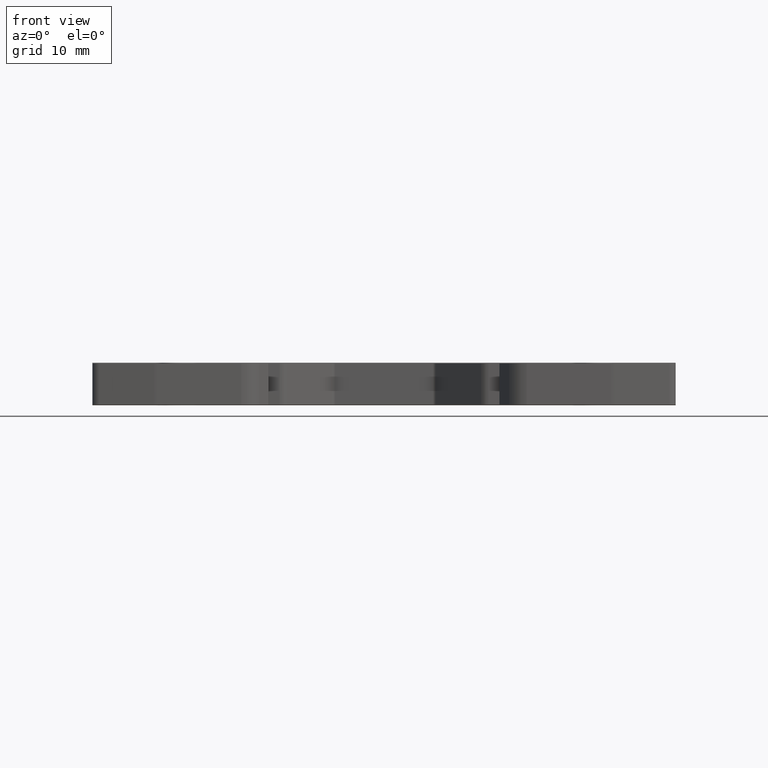
[diagram: clean part render]
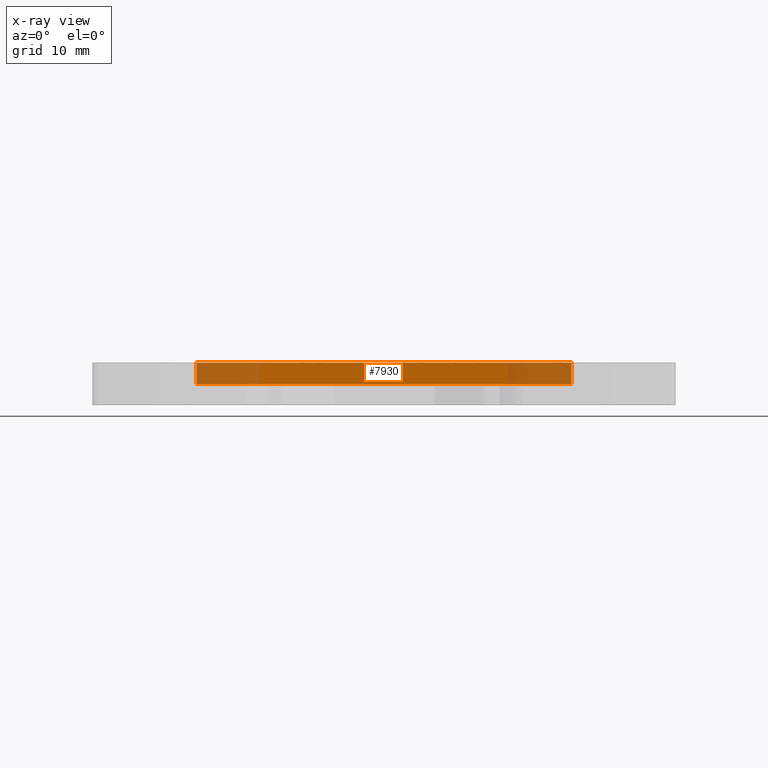
[diagram: x-ray — body ghosted, one internal face saturated and labeled with its STEP entity id]
A machine part, front view, then the same camera in x-ray: the body is ghosted and one INTERNAL B-rep face — a face not visible from any outside direction — is saturated and labeled: STEP entity #7930.
In plain terms, the highlighted planar face has unit normal (0, -1, 0).
Its self-contained STEP definition (entity closure, byte-faithful):
#42 = EDGE_LOOP ( 'NONE', ( #6162, #6186, #6192, #6170 ) ) ;
#871 = CARTESIAN_POINT ( 'NONE',  ( 486.0638790797615900, -343.1949880069399800, -54.04999999999999700 ) ) ;
#881 = LINE ( 'NONE', #871, #4218 ) ;
#882 = DIRECTION ( 'NONE',  ( 1.000000000000000000, 0.0000000000000000000, 0.0000000000000000000 ) ) ;
#1252 = FACE_OUTER_BOUND ( 'NONE', #42, .T. ) ;
#1259 = PLANE ( 'NONE',  #18822 ) ;
#1263 = DIRECTION ( 'NONE',  ( 0.0000000000000000000, -1.000000000000000000, 0.0000000000000000000 ) ) ;
#1268 = DIRECTION ( 'NONE',  ( 0.0000000000000000000, -0.0000000000000000000, -1.000000000000000000 ) ) ;
#1287 = CARTESIAN_POINT ( 'NONE',  ( 486.0638790797615900, -343.1949880069399800, -153.4747097562271600 ) ) ;
#4218 = VECTOR ( 'NONE', #882, 1000.000000000000000 ) ;
#4989 = CARTESIAN_POINT ( 'NONE',  ( 512.2873669321140800, -343.1949880069399800, -54.04999999999999000 ) ) ;
#6162 = ORIENTED_EDGE ( 'NONE', *, *, #19623, .F. ) ;
#6170 = ORIENTED_EDGE ( 'NONE', *, *, #19647, .F. ) ;
#6186 = ORIENTED_EDGE ( 'NONE', *, *, #19653, .T. ) ;
#6192 = ORIENTED_EDGE ( 'NONE', *, *, #19746, .F. ) ;
#7930 = ADVANCED_FACE ( 'NONE', ( #1252 ), #1259, .T. ) ;
#12285 = VERTEX_POINT ( 'NONE', #4989 ) ;
#14655 = VECTOR ( 'NONE', #17848, 1000.000000000000000 ) ;
#14673 = VECTOR ( 'NONE', #17701, 1000.000000000000000 ) ;
#14696 = VECTOR ( 'NONE', #17880, 1000.000000000000000 ) ;
#15467 = CARTESIAN_POINT ( 'NONE',  ( 460.2522925233080300, -343.1949880069399800, -56.99999999999999300 ) ) ;
#15483 = CARTESIAN_POINT ( 'NONE',  ( 512.2873669321140800, -343.1949880069399800, -56.99999999999999300 ) ) ;
#15484 = CARTESIAN_POINT ( 'NONE',  ( 460.2522925233080300, -343.1949880069399800, -54.04999999999999000 ) ) ;
#17697 = LINE ( 'NONE', #17757, #14673 ) ;
#17701 = DIRECTION ( 'NONE',  ( -1.000000000000000000, 0.0000000000000000000, 0.0000000000000000000 ) ) ;
#17757 = CARTESIAN_POINT ( 'NONE',  ( 486.0638790797615900, -343.1949880069399800, -56.99999999999999300 ) ) ;
#17807 = CARTESIAN_POINT ( 'NONE',  ( 460.2522925233080300, -343.1949880069399800, -153.4747097562271600 ) ) ;
#17815 = LINE ( 'NONE', #17807, #14655 ) ;
#17848 = DIRECTION ( 'NONE',  ( 0.0000000000000000000, 0.0000000000000000000, 1.000000000000000000 ) ) ;
#17857 = CARTESIAN_POINT ( 'NONE',  ( 512.2873669321140800, -343.1949880069399800, -153.4747097562271600 ) ) ;
#17864 = LINE ( 'NONE', #17857, #14696 ) ;
#17880 = DIRECTION ( 'NONE',  ( 0.0000000000000000000, 0.0000000000000000000, 1.000000000000000000 ) ) ;
#18822 = AXIS2_PLACEMENT_3D ( 'NONE', #1287, #1263, #1268 ) ;
#19623 = EDGE_CURVE ( 'NONE', #20081, #20112, #17697, .T. ) ;
#19647 = EDGE_CURVE ( 'NONE', #20112, #20126, #17815, .T. ) ;
#19653 = EDGE_CURVE ( 'NONE', #20081, #12285, #17864, .T. ) ;
#19746 = EDGE_CURVE ( 'NONE', #20126, #12285, #881, .T. ) ;
#20081 = VERTEX_POINT ( 'NONE', #15483 ) ;
#20112 = VERTEX_POINT ( 'NONE', #15467 ) ;
#20126 = VERTEX_POINT ( 'NONE', #15484 ) ;